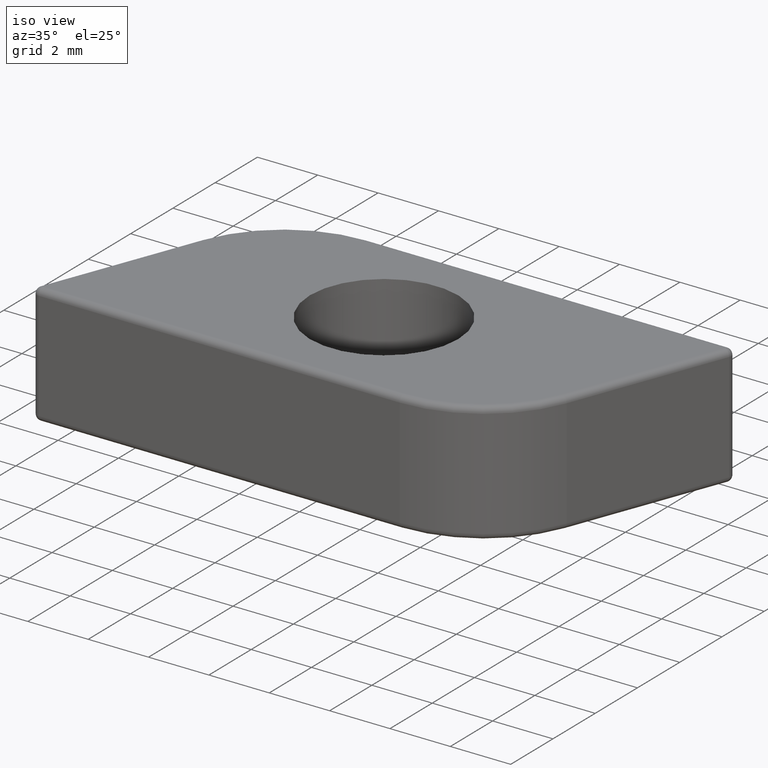
[diagram: clean part render]
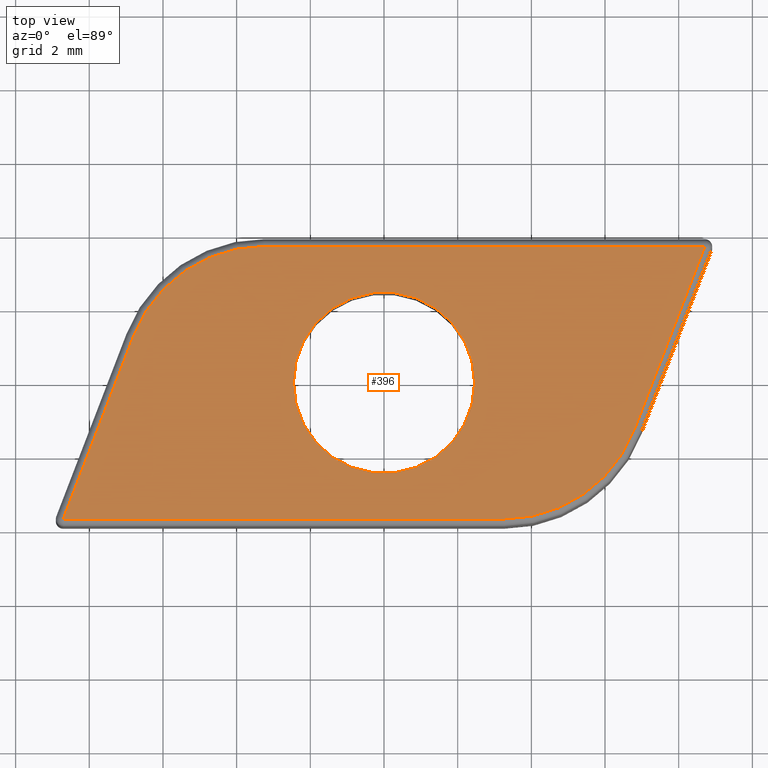
[diagram: tour spotlight — one face highlighted and labeled with its STEP entity id]
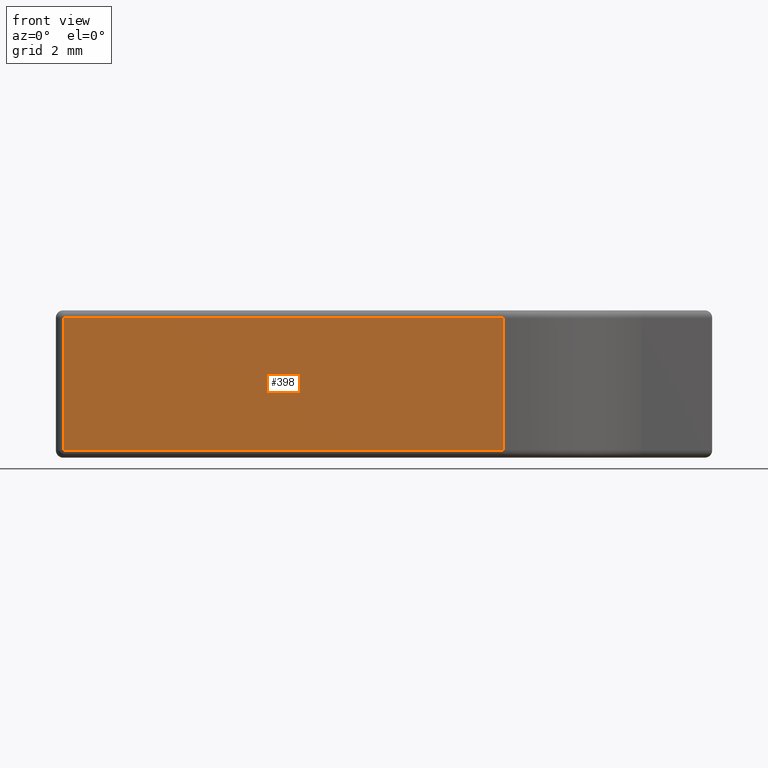
[diagram: tour spotlight — one face highlighted and labeled with its STEP entity id]
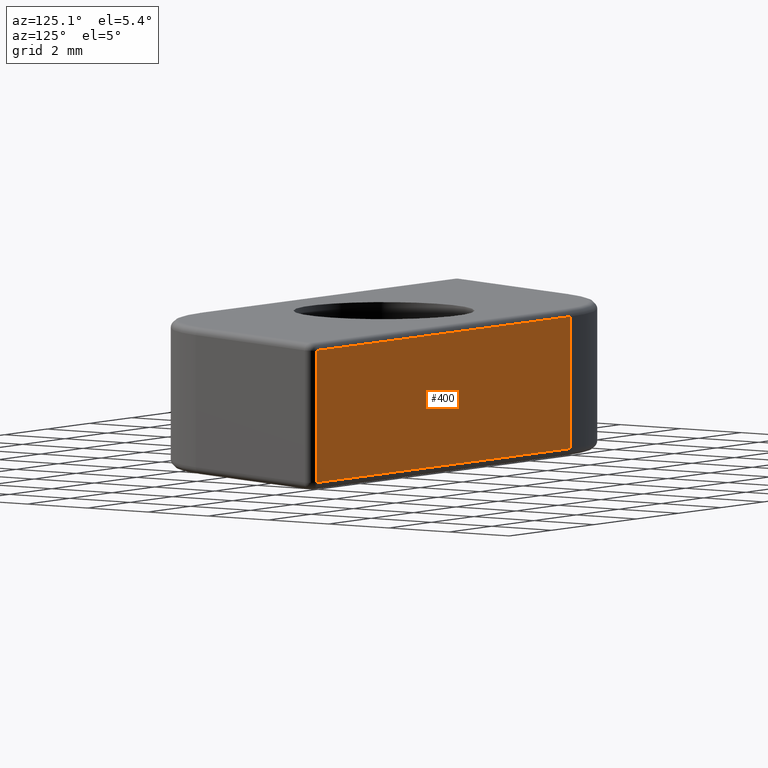
[diagram: tour spotlight — one face highlighted and labeled with its STEP entity id]
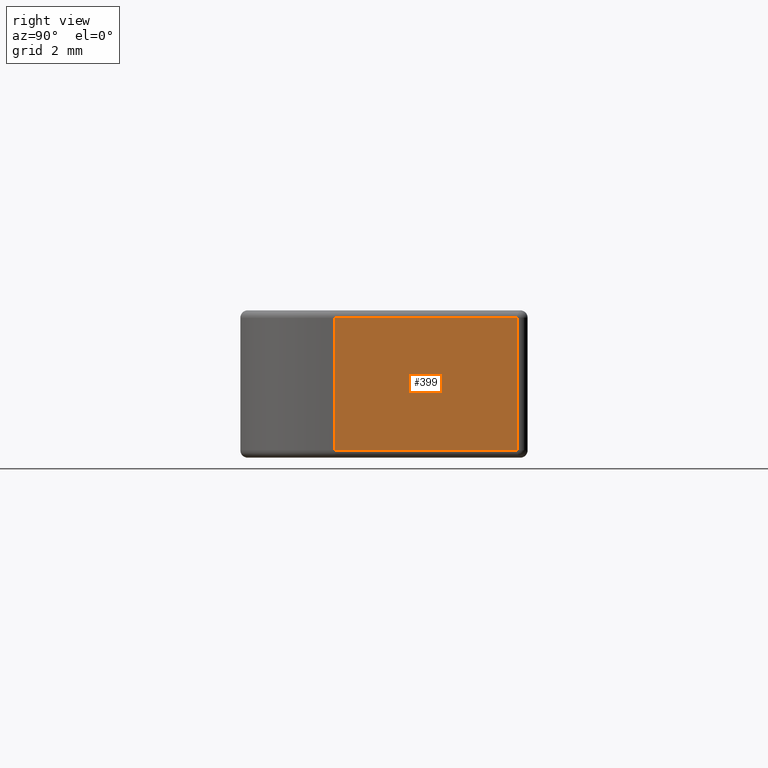
[diagram: tour spotlight — one face highlighted and labeled with its STEP entity id]
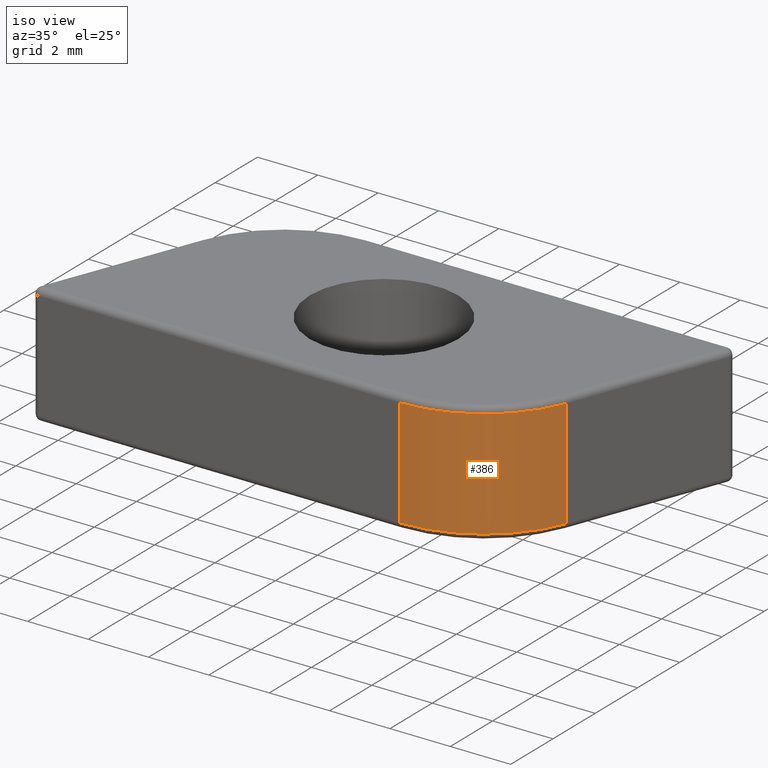
[diagram: tour spotlight — one face highlighted and labeled with its STEP entity id]
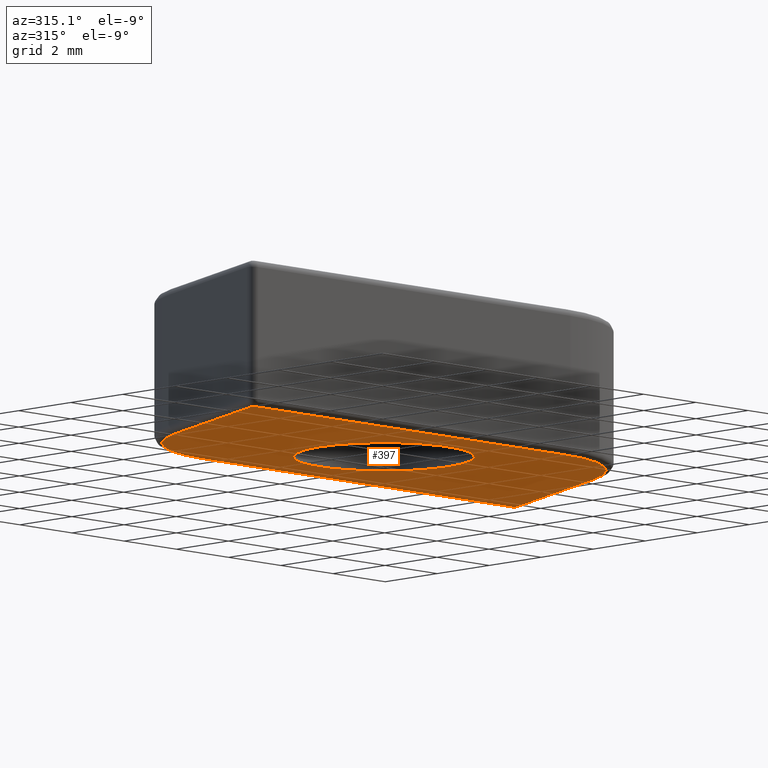
[diagram: tour spotlight — one face highlighted and labeled with its STEP entity id]
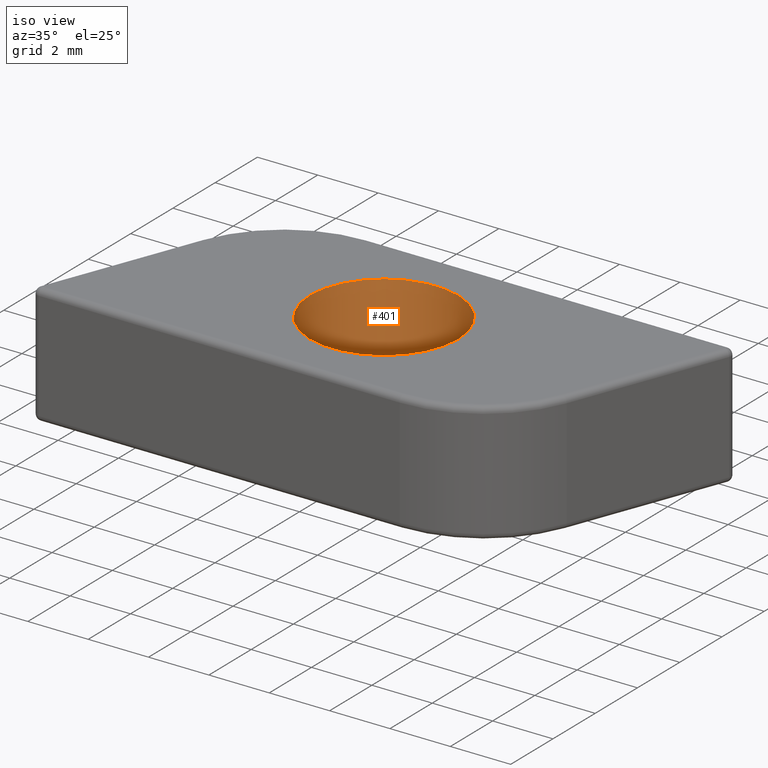
[diagram: tour spotlight — one face highlighted and labeled with its STEP entity id]
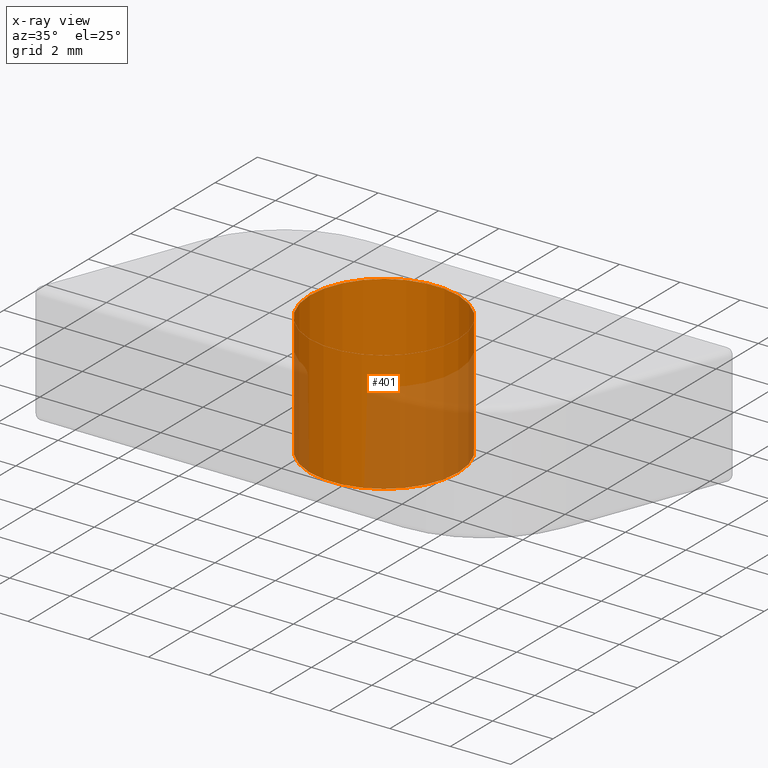
[diagram: x-ray of the same camera — body ghosted, this tour face saturated]
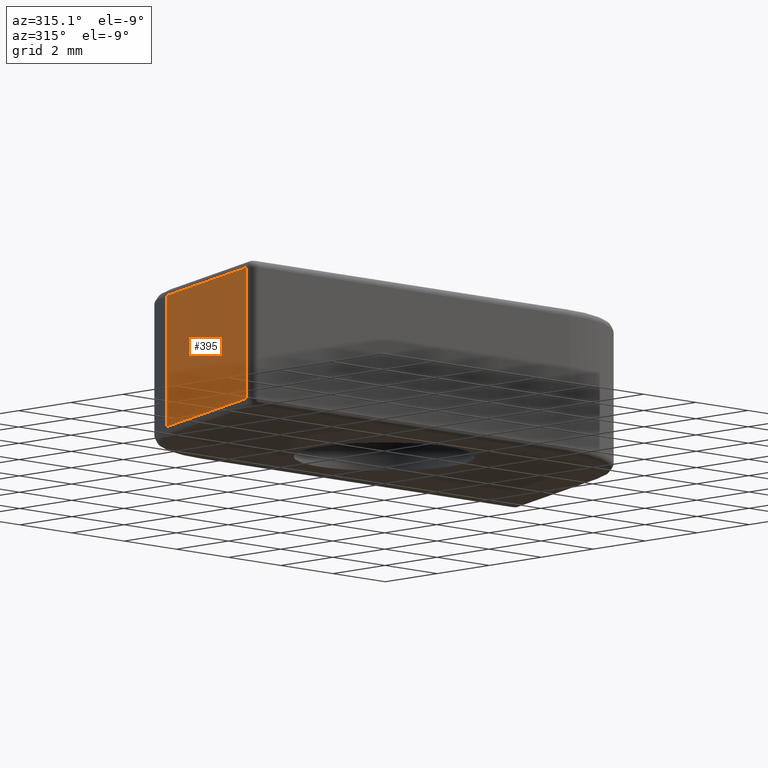
[diagram: tour spotlight — one face highlighted and labeled with its STEP entity id]
A machine part: a face-by-face anatomy tour. The part has 27 B-rep faces; the first image is the clean iso view, then the 8 largest visible faces are spotlighted one at a time (largest first), each with its STEP entity span.

Face 1 — top view, entity #396. In plain terms, the highlighted planar face has unit normal (0, 0, 1).
Definition (entity closure, byte-faithful):
#15=FACE_BOUND('',#139,.T.);
#18=PLANE('',#474);
#31=LINE('',#701,#56);
#33=LINE('',#704,#58);
#41=LINE('',#716,#66);
#43=LINE('',#719,#68);
#56=VECTOR('',#574,10.);
#58=VECTOR('',#578,10.);
#66=VECTOR('',#594,10.);
#68=VECTOR('',#598,10.);
#111=FACE_OUTER_BOUND('',#138,.T.);
#138=EDGE_LOOP('',(#341,#342,#343,#344,#345,#346));
#139=EDGE_LOOP('',(#347));
#149=CIRCLE('',#429,3.8);
#169=CIRCLE('',#456,3.8);
#174=CIRCLE('',#475,2.4585);
#177=VERTEX_POINT('',#626);
#179=VERTEX_POINT('',#630);
#185=VERTEX_POINT('',#644);
#188=VERTEX_POINT('',#651);
#197=VERTEX_POINT('',#675);
#199=VERTEX_POINT('',#679);
#204=VERTEX_POINT('',#726);
#209=EDGE_CURVE('',#179,#177,#149,.T.);
#231=EDGE_CURVE('',#199,#197,#169,.T.);
#242=EDGE_CURVE('',#188,#199,#31,.T.);
#244=EDGE_CURVE('',#197,#185,#33,.T.);
#252=EDGE_CURVE('',#177,#188,#41,.T.);
#254=EDGE_CURVE('',#185,#179,#43,.T.);
#258=EDGE_CURVE('',#204,#204,#174,.T.);
#341=ORIENTED_EDGE('',*,*,#231,.F.);
#342=ORIENTED_EDGE('',*,*,#242,.F.);
#343=ORIENTED_EDGE('',*,*,#252,.F.);
#344=ORIENTED_EDGE('',*,*,#209,.F.);
#345=ORIENTED_EDGE('',*,*,#254,.F.);
#346=ORIENTED_EDGE('',*,*,#244,.F.);
#347=ORIENTED_EDGE('',*,*,#258,.T.);
#396=ADVANCED_FACE('',(#111,#15),#18,.T.);
#429=AXIS2_PLACEMENT_3D('',#632,#492,#493);
#456=AXIS2_PLACEMENT_3D('',#681,#548,#549);
#474=AXIS2_PLACEMENT_3D('',#725,#606,#607);
#475=AXIS2_PLACEMENT_3D('',#727,#608,#609);
#492=DIRECTION('center_axis',(0.,0.,-1.));
#493=DIRECTION('ref_axis',(-0.566130911142145,0.824315347090763,0.));
#548=DIRECTION('center_axis',(0.,0.,-1.));
#549=DIRECTION('ref_axis',(0.566130911142145,-0.824315347090762,0.));
#574=DIRECTION('',(-0.358991582898729,-0.933340797033894,0.));
#578=DIRECTION('',(-1.,-2.59054110672256E-16,0.));
#594=DIRECTION('',(1.,7.40154601920732E-17,0.));
#598=DIRECTION('',(0.35899158289873,0.933340797033894,0.));
#606=DIRECTION('center_axis',(0.,0.,1.));
#607=DIRECTION('ref_axis',(1.,0.,0.));
#608=DIRECTION('center_axis',(0.,0.,-1.));
#609=DIRECTION('ref_axis',(-1.,0.,0.));
#626=CARTESIAN_POINT('',(-3.25272308672009,3.7,4.));
#630=CARTESIAN_POINT('',(-6.79941811544889,1.26416801501517,4.));
#632=CARTESIAN_POINT('Origin',(-3.25272308672009,-0.100000000000002,4.));
#644=CARTESIAN_POINT('',(-8.70878984670604,-3.7,4.));
#651=CARTESIAN_POINT('',(8.70878984670604,3.7,4.));
#675=CARTESIAN_POINT('',(3.25272308672009,-3.7,4.));
#679=CARTESIAN_POINT('',(6.79941811544889,-1.26416801501517,4.));
#681=CARTESIAN_POINT('Origin',(3.25272308672009,0.100000000000002,4.));
#701=CARTESIAN_POINT('',(6.07996465452625,-3.13467222356581,4.));
#704=CARTESIAN_POINT('',(-4.5,-3.7,4.));
#716=CARTESIAN_POINT('',(4.5,3.7,4.));
#719=CARTESIAN_POINT('',(-6.07996465452625,3.13467222356581,4.));
#725=CARTESIAN_POINT('Origin',(-2.22044604925031E-15,-5.55111512312578E-16,
4.));
#726=CARTESIAN_POINT('',(2.4585,-3.01079415570377E-16,4.));
#727=CARTESIAN_POINT('Origin',(0.,0.,4.));

Face 2 — front view, entity #398. In plain terms, the highlighted planar face has unit normal (0, -1, 0).
Definition (entity closure, byte-faithful):
#20=PLANE('',#478);
#25=LINE('',#692,#50);
#29=LINE('',#698,#54);
#34=LINE('',#705,#59);
#36=LINE('',#708,#61);
#50=VECTOR('',#562,10.);
#54=VECTOR('',#570,10.);
#59=VECTOR('',#579,10.);
#61=VECTOR('',#583,10.);
#113=FACE_OUTER_BOUND('',#142,.T.);
#142=EDGE_LOOP('',(#355,#356,#357,#358));
#186=VERTEX_POINT('',#646);
#194=VERTEX_POINT('',#665);
#196=VERTEX_POINT('',#674);
#200=VERTEX_POINT('',#683);
#236=EDGE_CURVE('',#200,#194,#25,.T.);
#240=EDGE_CURVE('',#196,#200,#29,.T.);
#245=EDGE_CURVE('',#186,#196,#34,.T.);
#247=EDGE_CURVE('',#194,#186,#36,.T.);
#355=ORIENTED_EDGE('',*,*,#236,.F.);
#356=ORIENTED_EDGE('',*,*,#240,.F.);
#357=ORIENTED_EDGE('',*,*,#245,.F.);
#358=ORIENTED_EDGE('',*,*,#247,.F.);
#398=ADVANCED_FACE('',(#113),#20,.T.);
#478=AXIS2_PLACEMENT_3D('',#731,#614,#615);
#562=DIRECTION('',(-1.,-2.59054110672256E-16,0.));
#570=DIRECTION('',(0.,0.,-1.));
#579=DIRECTION('',(1.,2.59054110672256E-16,0.));
#583=DIRECTION('',(0.,0.,1.));
#614=DIRECTION('center_axis',(2.59054110672256E-16,-1.,0.));
#615=DIRECTION('ref_axis',(1.,2.59054110672256E-16,0.));
#646=CARTESIAN_POINT('',(-8.70878984670604,-3.9,3.8));
#665=CARTESIAN_POINT('',(-8.70878984670604,-3.9,0.2));
#674=CARTESIAN_POINT('',(3.25272308672009,-3.9,3.8));
#683=CARTESIAN_POINT('',(3.25272308672009,-3.9,0.2));
#692=CARTESIAN_POINT('',(-4.5,-3.9,0.2));
#698=CARTESIAN_POINT('',(3.25272308672009,-3.9,0.));
#705=CARTESIAN_POINT('',(-4.5,-3.9,3.8));
#708=CARTESIAN_POINT('',(-8.70878984670604,-3.9,0.));
#731=CARTESIAN_POINT('Origin',(-9.,-3.9,0.));

Face 3 — auxiliary view, entity #400. In plain terms, the highlighted planar face has unit normal (-0, 1, 0).
Definition (entity closure, byte-faithful):
#22=PLANE('',#480);
#37=LINE('',#710,#62);
#40=LINE('',#714,#65);
#42=LINE('',#717,#67);
#45=LINE('',#722,#70);
#62=VECTOR('',#586,10.);
#65=VECTOR('',#591,10.);
#67=VECTOR('',#595,10.);
#70=VECTOR('',#602,10.);
#115=FACE_OUTER_BOUND('',#144,.T.);
#144=EDGE_LOOP('',(#363,#364,#365,#366));
#176=VERTEX_POINT('',#625);
#183=VERTEX_POINT('',#639);
#189=VERTEX_POINT('',#653);
#191=VERTEX_POINT('',#658);
#248=EDGE_CURVE('',#183,#191,#37,.T.);
#251=EDGE_CURVE('',#191,#189,#40,.T.);
#253=EDGE_CURVE('',#189,#176,#42,.T.);
#256=EDGE_CURVE('',#176,#183,#45,.T.);
#363=ORIENTED_EDGE('',*,*,#248,.F.);
#364=ORIENTED_EDGE('',*,*,#256,.F.);
#365=ORIENTED_EDGE('',*,*,#253,.F.);
#366=ORIENTED_EDGE('',*,*,#251,.F.);
#400=ADVANCED_FACE('',(#115),#22,.T.);
#480=AXIS2_PLACEMENT_3D('',#733,#618,#619);
#586=DIRECTION('',(1.,7.40154601920732E-17,0.));
#591=DIRECTION('',(0.,0.,1.));
#595=DIRECTION('',(-1.,-7.40154601920732E-17,0.));
#602=DIRECTION('',(0.,0.,-1.));
#618=DIRECTION('center_axis',(-7.40154601920732E-17,1.,0.));
#619=DIRECTION('ref_axis',(-1.,-7.40154601920732E-17,0.));
#625=CARTESIAN_POINT('',(-3.25272308672009,3.9,3.8));
#639=CARTESIAN_POINT('',(-3.25272308672009,3.9,0.2));
#653=CARTESIAN_POINT('',(8.70878984670604,3.9,3.8));
#658=CARTESIAN_POINT('',(8.70878984670604,3.9,0.2));
#710=CARTESIAN_POINT('',(4.5,3.9,0.2));
#714=CARTESIAN_POINT('',(8.70878984670604,3.9,0.));
#717=CARTESIAN_POINT('',(4.5,3.9,3.8));
#722=CARTESIAN_POINT('',(-3.25272308672009,3.9,0.));
#733=CARTESIAN_POINT('Origin',(9.,3.9,0.));

Face 4 — right view, entity #399. In plain terms, the highlighted planar face has unit normal (0.9333, -0.359, 0).
Definition (entity closure, byte-faithful):
#21=PLANE('',#479);
#27=LINE('',#695,#52);
#30=LINE('',#699,#55);
#32=LINE('',#702,#57);
#39=LINE('',#713,#64);
#52=VECTOR('',#566,10.);
#55=VECTOR('',#571,10.);
#57=VECTOR('',#575,10.);
#64=VECTOR('',#590,10.);
#114=FACE_OUTER_BOUND('',#143,.T.);
#143=EDGE_LOOP('',(#359,#360,#361,#362));
#187=VERTEX_POINT('',#650);
#190=VERTEX_POINT('',#657);
#198=VERTEX_POINT('',#677);
#201=VERTEX_POINT('',#684);
#238=EDGE_CURVE('',#190,#201,#27,.T.);
#241=EDGE_CURVE('',#201,#198,#30,.T.);
#243=EDGE_CURVE('',#198,#187,#32,.T.);
#250=EDGE_CURVE('',#187,#190,#39,.T.);
#359=ORIENTED_EDGE('',*,*,#238,.F.);
#360=ORIENTED_EDGE('',*,*,#250,.F.);
#361=ORIENTED_EDGE('',*,*,#243,.F.);
#362=ORIENTED_EDGE('',*,*,#241,.F.);
#399=ADVANCED_FACE('',(#114),#21,.T.);
#479=AXIS2_PLACEMENT_3D('',#732,#616,#617);
#566=DIRECTION('',(-0.358991582898729,-0.933340797033894,0.));
#571=DIRECTION('',(0.,0.,1.));
#575=DIRECTION('',(0.358991582898729,0.933340797033894,0.));
#590=DIRECTION('',(0.,0.,-1.));
#616=DIRECTION('center_axis',(0.933340797033894,-0.358991582898729,0.));
#617=DIRECTION('ref_axis',(0.358991582898729,0.933340797033894,0.));
#650=CARTESIAN_POINT('',(8.89545800611282,3.62820168342025,3.8));
#657=CARTESIAN_POINT('',(8.89545800611282,3.62820168342026,0.2));
#677=CARTESIAN_POINT('',(6.98608627485566,-1.33596633159492,3.8));
#684=CARTESIAN_POINT('',(6.98608627485566,-1.33596633159492,0.2));
#695=CARTESIAN_POINT('',(6.26663281393303,-3.20647054014555,0.2));
#699=CARTESIAN_POINT('',(6.98608627485566,-1.33596633159492,0.));
#702=CARTESIAN_POINT('',(6.26663281393303,-3.20647054014555,3.8));
#713=CARTESIAN_POINT('',(8.89545800611282,3.62820168342025,0.));
#732=CARTESIAN_POINT('Origin',(5.99988004862879,-3.9,0.));

Face 5 — iso view, entity #386. In plain terms, the highlighted cylindrical surface (partial cylindrical patch) has radius 4 mm, axis along (0, 0, 1).
Definition (entity closure, byte-faithful):
#29=LINE('',#698,#54);
#30=LINE('',#699,#55);
#54=VECTOR('',#570,10.);
#55=VECTOR('',#571,10.);
#76=CYLINDRICAL_SURFACE('',#464,4.);
#101=FACE_OUTER_BOUND('',#128,.T.);
#128=EDGE_LOOP('',(#301,#302,#303,#304));
#167=CIRCLE('',#454,4.);
#170=CIRCLE('',#458,4.);
#196=VERTEX_POINT('',#674);
#198=VERTEX_POINT('',#677);
#200=VERTEX_POINT('',#683);
#201=VERTEX_POINT('',#684);
#229=EDGE_CURVE('',#198,#196,#167,.F.);
#232=EDGE_CURVE('',#200,#201,#170,.F.);
#240=EDGE_CURVE('',#196,#200,#29,.T.);
#241=EDGE_CURVE('',#201,#198,#30,.T.);
#301=ORIENTED_EDGE('',*,*,#229,.T.);
#302=ORIENTED_EDGE('',*,*,#240,.T.);
#303=ORIENTED_EDGE('',*,*,#232,.T.);
#304=ORIENTED_EDGE('',*,*,#241,.T.);
#386=ADVANCED_FACE('',(#101),#76,.T.);
#454=AXIS2_PLACEMENT_3D('',#678,#544,#545);
#458=AXIS2_PLACEMENT_3D('',#685,#552,#553);
#464=AXIS2_PLACEMENT_3D('',#697,#568,#569);
#544=DIRECTION('center_axis',(0.,0.,1.));
#545=DIRECTION('ref_axis',(0.933340797033894,-0.358991582898729,0.));
#552=DIRECTION('center_axis',(0.,0.,-1.));
#553=DIRECTION('ref_axis',(2.77555756156289E-16,-1.,0.));
#568=DIRECTION('center_axis',(0.,0.,1.));
#569=DIRECTION('ref_axis',(0.566130911142145,-0.824315347090763,0.));
#570=DIRECTION('',(0.,0.,-1.));
#571=DIRECTION('',(0.,0.,1.));
#674=CARTESIAN_POINT('',(3.25272308672009,-3.9,3.8));
#677=CARTESIAN_POINT('',(6.98608627485566,-1.33596633159492,3.8));
#678=CARTESIAN_POINT('Origin',(3.25272308672009,0.100000000000002,3.8));
#683=CARTESIAN_POINT('',(3.25272308672009,-3.9,0.2));
#684=CARTESIAN_POINT('',(6.98608627485566,-1.33596633159492,0.2));
#685=CARTESIAN_POINT('Origin',(3.25272308672009,0.100000000000002,0.2));
#697=CARTESIAN_POINT('Origin',(3.25272308672009,0.100000000000002,0.));
#698=CARTESIAN_POINT('',(3.25272308672009,-3.9,0.));
#699=CARTESIAN_POINT('',(6.98608627485566,-1.33596633159492,0.));

Face 6 — auxiliary view, entity #397. In plain terms, the highlighted planar face has unit normal (0, 0, 1).
Definition (entity closure, byte-faithful):
#16=FACE_BOUND('',#141,.T.);
#19=PLANE('',#476);
#24=LINE('',#672,#49);
#26=LINE('',#693,#51);
#28=LINE('',#696,#53);
#38=LINE('',#711,#63);
#49=VECTOR('',#539,10.);
#51=VECTOR('',#563,10.);
#53=VECTOR('',#567,10.);
#63=VECTOR('',#587,10.);
#112=FACE_OUTER_BOUND('',#140,.T.);
#140=EDGE_LOOP('',(#348,#349,#350,#351,#352,#353));
#141=EDGE_LOOP('',(#354));
#150=CIRCLE('',#431,3.8);
#172=CIRCLE('',#460,3.8);
#175=CIRCLE('',#477,2.4585);
#180=VERTEX_POINT('',#634);
#181=VERTEX_POINT('',#635);
#192=VERTEX_POINT('',#660);
#195=VERTEX_POINT('',#667);
#202=VERTEX_POINT('',#686);
#203=VERTEX_POINT('',#688);
#205=VERTEX_POINT('',#729);
#210=EDGE_CURVE('',#180,#181,#150,.T.);
#227=EDGE_CURVE('',#181,#195,#24,.T.);
#234=EDGE_CURVE('',#202,#203,#172,.T.);
#237=EDGE_CURVE('',#195,#202,#26,.T.);
#239=EDGE_CURVE('',#203,#192,#28,.T.);
#249=EDGE_CURVE('',#192,#180,#38,.T.);
#259=EDGE_CURVE('',#205,#205,#175,.T.);
#348=ORIENTED_EDGE('',*,*,#234,.F.);
#349=ORIENTED_EDGE('',*,*,#237,.F.);
#350=ORIENTED_EDGE('',*,*,#227,.F.);
#351=ORIENTED_EDGE('',*,*,#210,.F.);
#352=ORIENTED_EDGE('',*,*,#249,.F.);
#353=ORIENTED_EDGE('',*,*,#239,.F.);
#354=ORIENTED_EDGE('',*,*,#259,.T.);
#397=ADVANCED_FACE('',(#112,#16),#19,.F.);
#431=AXIS2_PLACEMENT_3D('',#636,#496,#497);
#460=AXIS2_PLACEMENT_3D('',#689,#556,#557);
#476=AXIS2_PLACEMENT_3D('',#728,#610,#611);
#477=AXIS2_PLACEMENT_3D('',#730,#612,#613);
#496=DIRECTION('center_axis',(0.,0.,1.));
#497=DIRECTION('ref_axis',(-0.566130911142145,0.824315347090763,0.));
#539=DIRECTION('',(-0.35899158289873,-0.933340797033894,0.));
#556=DIRECTION('center_axis',(0.,0.,1.));
#557=DIRECTION('ref_axis',(0.566130911142145,-0.824315347090763,0.));
#563=DIRECTION('',(1.,2.59054110672256E-16,0.));
#567=DIRECTION('',(0.358991582898729,0.933340797033894,0.));
#587=DIRECTION('',(-1.,-7.40154601920732E-17,0.));
#610=DIRECTION('center_axis',(0.,0.,1.));
#611=DIRECTION('ref_axis',(1.,0.,0.));
#612=DIRECTION('center_axis',(0.,0.,1.));
#613=DIRECTION('ref_axis',(-1.,0.,0.));
#634=CARTESIAN_POINT('',(-3.25272308672009,3.7,0.));
#635=CARTESIAN_POINT('',(-6.79941811544889,1.26416801501517,0.));
#636=CARTESIAN_POINT('Origin',(-3.25272308672009,-0.100000000000002,0.));
#660=CARTESIAN_POINT('',(8.70878984670604,3.7,0.));
#667=CARTESIAN_POINT('',(-8.70878984670604,-3.7,0.));
#672=CARTESIAN_POINT('',(-6.07996465452625,3.13467222356581,0.));
#686=CARTESIAN_POINT('',(3.25272308672009,-3.7,0.));
#688=CARTESIAN_POINT('',(6.79941811544889,-1.26416801501517,0.));
#689=CARTESIAN_POINT('Origin',(3.25272308672009,0.100000000000002,0.));
#693=CARTESIAN_POINT('',(-4.5,-3.7,0.));
#696=CARTESIAN_POINT('',(6.07996465452625,-3.13467222356581,0.));
#711=CARTESIAN_POINT('',(4.5,3.7,0.));
#728=CARTESIAN_POINT('Origin',(-2.22810301610312E-15,-5.34744723864749E-16,
0.));
#729=CARTESIAN_POINT('',(2.4585,-3.01079415570377E-16,0.));
#730=CARTESIAN_POINT('Origin',(0.,0.,0.));

Face 7 — iso view, entity #401. An x-ray twin of the same camera follows (body ghosted, this face saturated) — the face is partly hidden behind the body. In plain terms, the highlighted cylindrical surface (bore or boss wall) has radius 2.4585 mm, axis along (0, 0, -1).
Definition (entity closure, byte-faithful):
#47=LINE('',#735,#72);
#72=VECTOR('',#622,2.4585);
#85=CYLINDRICAL_SURFACE('',#481,2.4585);
#116=FACE_OUTER_BOUND('',#145,.T.);
#145=EDGE_LOOP('',(#367,#368,#369,#370));
#174=CIRCLE('',#475,2.4585);
#175=CIRCLE('',#477,2.4585);
#204=VERTEX_POINT('',#726);
#205=VERTEX_POINT('',#729);
#258=EDGE_CURVE('',#204,#204,#174,.T.);
#259=EDGE_CURVE('',#205,#205,#175,.T.);
#260=EDGE_CURVE('',#205,#204,#47,.T.);
#367=ORIENTED_EDGE('',*,*,#259,.F.);
#368=ORIENTED_EDGE('',*,*,#260,.T.);
#369=ORIENTED_EDGE('',*,*,#258,.F.);
#370=ORIENTED_EDGE('',*,*,#260,.F.);
#401=ADVANCED_FACE('',(#116),#85,.F.);
#475=AXIS2_PLACEMENT_3D('',#727,#608,#609);
#477=AXIS2_PLACEMENT_3D('',#730,#612,#613);
#481=AXIS2_PLACEMENT_3D('',#734,#620,#621);
#608=DIRECTION('center_axis',(0.,0.,-1.));
#609=DIRECTION('ref_axis',(-1.,0.,0.));
#612=DIRECTION('center_axis',(0.,0.,1.));
#613=DIRECTION('ref_axis',(-1.,0.,0.));
#620=DIRECTION('center_axis',(0.,0.,-1.));
#621=DIRECTION('ref_axis',(-1.,0.,0.));
#622=DIRECTION('',(0.,0.,1.));
#726=CARTESIAN_POINT('',(2.4585,-3.01079415570377E-16,4.));
#727=CARTESIAN_POINT('Origin',(0.,0.,4.));
#729=CARTESIAN_POINT('',(2.4585,-3.01079415570377E-16,0.));
#730=CARTESIAN_POINT('Origin',(0.,0.,0.));
#734=CARTESIAN_POINT('Origin',(0.,0.,20.0209889865611));
#735=CARTESIAN_POINT('',(2.4585,-3.01079415570377E-16,20.0209889865611));

Face 8 — auxiliary view, entity #395. In plain terms, the highlighted planar face has unit normal (-0.9333, 0.359, 0).
Definition (entity closure, byte-faithful):
#17=PLANE('',#473);
#23=LINE('',#671,#48);
#35=LINE('',#707,#60);
#44=LINE('',#720,#69);
#46=LINE('',#723,#71);
#48=VECTOR('',#538,10.);
#60=VECTOR('',#582,10.);
#69=VECTOR('',#599,10.);
#71=VECTOR('',#603,10.);
#110=FACE_OUTER_BOUND('',#137,.T.);
#137=EDGE_LOOP('',(#337,#338,#339,#340));
#178=VERTEX_POINT('',#628);
#182=VERTEX_POINT('',#637);
#184=VERTEX_POINT('',#643);
#193=VERTEX_POINT('',#664);
#226=EDGE_CURVE('',#193,#182,#23,.T.);
#246=EDGE_CURVE('',#184,#193,#35,.T.);
#255=EDGE_CURVE('',#178,#184,#44,.T.);
#257=EDGE_CURVE('',#182,#178,#46,.T.);
#337=ORIENTED_EDGE('',*,*,#226,.F.);
#338=ORIENTED_EDGE('',*,*,#246,.F.);
#339=ORIENTED_EDGE('',*,*,#255,.F.);
#340=ORIENTED_EDGE('',*,*,#257,.F.);
#395=ADVANCED_FACE('',(#110),#17,.T.);
#473=AXIS2_PLACEMENT_3D('',#724,#604,#605);
#538=DIRECTION('',(0.35899158289873,0.933340797033894,0.));
#582=DIRECTION('',(0.,0.,-1.));
#599=DIRECTION('',(-0.35899158289873,-0.933340797033894,0.));
#603=DIRECTION('',(0.,0.,1.));
#604=DIRECTION('center_axis',(-0.933340797033894,0.35899158289873,0.));
#605=DIRECTION('ref_axis',(-0.35899158289873,-0.933340797033894,0.));
#628=CARTESIAN_POINT('',(-6.98608627485567,1.33596633159492,3.8));
#637=CARTESIAN_POINT('',(-6.98608627485567,1.33596633159492,0.2));
#643=CARTESIAN_POINT('',(-8.89545800611282,-3.62820168342026,3.8));
#664=CARTESIAN_POINT('',(-8.89545800611282,-3.62820168342026,0.2));
#671=CARTESIAN_POINT('',(-6.26663281393303,3.20647054014555,0.2));
#707=CARTESIAN_POINT('',(-8.89545800611282,-3.62820168342026,0.));
#720=CARTESIAN_POINT('',(-6.26663281393303,3.20647054014555,3.8));
#723=CARTESIAN_POINT('',(-6.98608627485567,1.33596633159492,0.));
#724=CARTESIAN_POINT('Origin',(-5.99988004862879,3.9,0.));